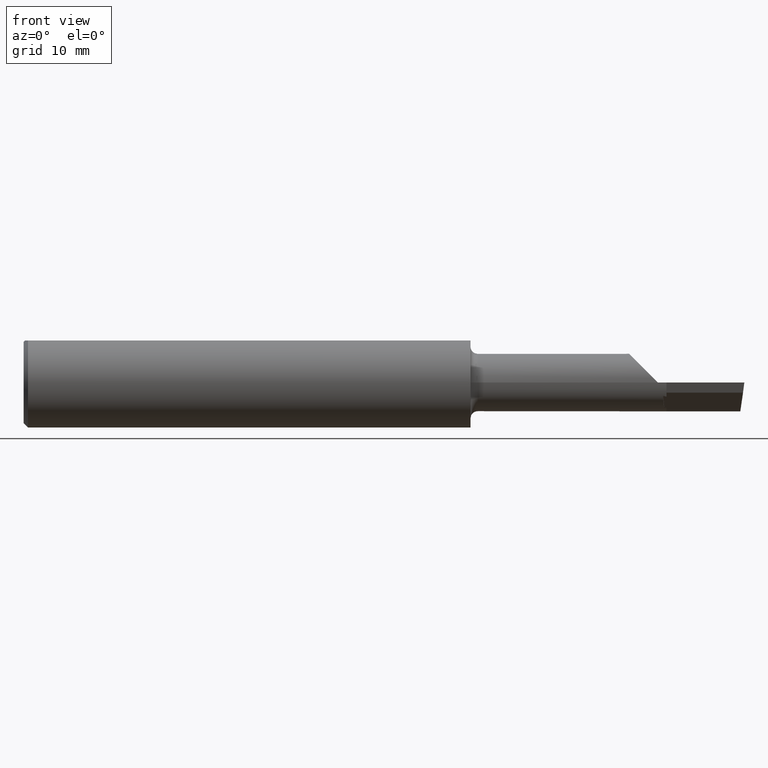
[diagram: clean part render]
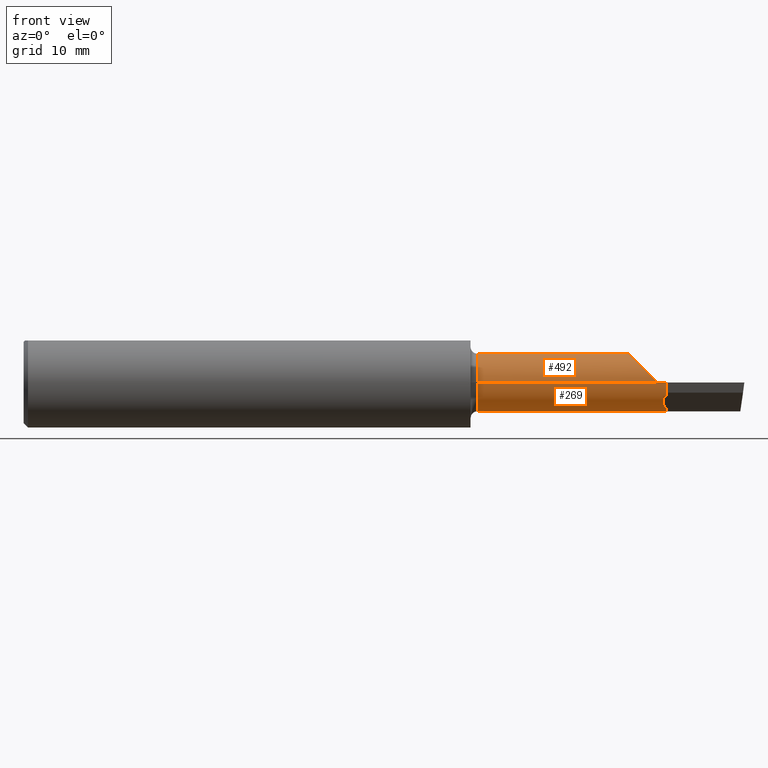
[diagram: same view with one multi-face feature highlighted, each face labeled with its STEP entity id]
A machine part, front view. The highlighted faces form ONE feature: a constant-radius fillet chain: 2 tangent blend faces with common blend radius 2.5375 mm. The faces share edges in the B-rep.
Their STEP definitions:
[1] entity #492 (Cylinder):
#4 = DIRECTION ( 'NONE',  ( -1.000000000000000000, 3.414809992080329023E-18, -0.000000000000000000 ) ) ;
#7 = CYLINDRICAL_SURFACE ( 'NONE', #471, 0.09990000000000004432 ) ;
#27 = CARTESIAN_POINT ( 'NONE',  ( 2.050862765435913726, 0.07006795998724148211, 0.1491372345640848418 ) ) ;
#30 = VECTOR ( 'NONE', #487, 39.37007874015748143 ) ;
#31 = EDGE_CURVE ( 'NONE', #132, #194, #434, .T. ) ;
#40 = EDGE_CURVE ( 'NONE', #280, #399, #61, .T. ) ;
#60 = CARTESIAN_POINT ( 'NONE',  ( 1.574999999999999956, -0.03390000000000009672, 0.000000000000000000 ) ) ;
#61 = LINE ( 'NONE', #320, #112 ) ;
#63 = CARTESIAN_POINT ( 'NONE',  ( 1.574999999999999956, 0.1419939393939388950, 0.06484544066771663617 ) ) ;
#71 = CARTESIAN_POINT ( 'NONE',  ( 2.089191818750234741, -0.03390000000000004121, 0.1108081812497644647 ) ) ;
#88 = ORIENTED_EDGE ( 'NONE', *, *, #458, .F. ) ;
#105 = CIRCLE ( 'NONE', #503, 0.09990000000000008595 ) ;
#112 = VECTOR ( 'NONE', #4, 39.37007874015748143 ) ;
#132 = VERTEX_POINT ( 'NONE', #63 ) ;
#161 = CARTESIAN_POINT ( 'NONE',  ( 1.902500000000000080, 0.1419939393939392558, 0.06484544066771610882 ) ) ;
#177 =( BOUNDED_CURVE ( )  B_SPLINE_CURVE ( 3, ( #548, #27, #71, #292 ),
 .UNSPECIFIED., .F., .T. ) 
 B_SPLINE_CURVE_WITH_KNOTS ( ( 4, 4 ),
 ( 5.418794317430681851, 7.853981633974482790 ),
 .UNSPECIFIED. ) 
 CURVE ( )  GEOMETRIC_REPRESENTATION_ITEM ( )  RATIONAL_B_SPLINE_CURVE ( ( 1.000000000000000000, 0.5639363621110593527, 0.5639363621110593527, 1.000000000000000000 ) ) 
 REPRESENTATION_ITEM ( '' )  );
#194 = VERTEX_POINT ( 'NONE', #656 ) ;
#206 = EDGE_CURVE ( 'NONE', #194, #280, #177, .T. ) ;
#219 = ORIENTED_EDGE ( 'NONE', *, *, #31, .F. ) ;
#230 = ORIENTED_EDGE ( 'NONE', *, *, #206, .F. ) ;
#280 = VERTEX_POINT ( 'NONE', #574 ) ;
#292 = CARTESIAN_POINT ( 'NONE',  ( 2.200000000000000178, -0.03390000000000021468, 9.797174393178826150E-17 ) ) ;
#320 = CARTESIAN_POINT ( 'NONE',  ( -3.411395182088250145E-19, -0.03390000000000004121, 0.000000000000000000 ) ) ;
#387 = DIRECTION ( 'NONE',  ( -1.000000000000000000, 3.414809992080329023E-18, -0.000000000000000000 ) ) ;
#394 = EDGE_LOOP ( 'NONE', ( #564, #230, #219, #88 ) ) ;
#399 = VERTEX_POINT ( 'NONE', #60 ) ;
#430 = CARTESIAN_POINT ( 'NONE',  ( 1.574999999999999956, 0.06599999999999998923, 0.000000000000000000 ) ) ;
#434 = LINE ( 'NONE', #161, #30 ) ;
#458 = EDGE_CURVE ( 'NONE', #399, #132, #105, .T. ) ;
#471 = AXIS2_PLACEMENT_3D ( 'NONE', #651, #387, #609 ) ;
#487 = DIRECTION ( 'NONE',  ( 1.000000000000000000, -3.414809992080329023E-18, 0.000000000000000000 ) ) ;
#491 = DIRECTION ( 'NONE',  ( 0.000000000000000000, -1.000000000000000000, 0.000000000000000000 ) ) ;
#492 = ADVANCED_FACE ( 'NONE', ( #589 ), #7, .T. ) ;
#495 = DIRECTION ( 'NONE',  ( -1.000000000000000000, 3.414809992080329023E-18, -0.000000000000000000 ) ) ;
#503 = AXIS2_PLACEMENT_3D ( 'NONE', #430, #495, #491 ) ;
#548 = CARTESIAN_POINT ( 'NONE',  ( 2.135154559332283597, 0.1419939393939393113, 0.06484544066771606718 ) ) ;
#564 = ORIENTED_EDGE ( 'NONE', *, *, #40, .F. ) ;
#574 = CARTESIAN_POINT ( 'NONE',  ( 2.200000000000000178, -0.03390000000000021468, 9.797174393178826150E-17 ) ) ;
#589 = FACE_OUTER_BOUND ( 'NONE', #394, .T. ) ;
#609 = DIRECTION ( 'NONE',  ( -3.414809992080329023E-18, -1.000000000000000000, 0.000000000000000000 ) ) ;
#651 = CARTESIAN_POINT ( 'NONE',  ( 0.000000000000000000, 0.06600000000000000311, 0.000000000000000000 ) ) ;
#656 = CARTESIAN_POINT ( 'NONE',  ( 2.135154559332283597, 0.1419939393939393113, 0.06484544066771606718 ) ) ;
[2] entity #269 (Cylinder):
#4 = DIRECTION ( 'NONE',  ( -1.000000000000000000, 3.414809992080329023E-18, -0.000000000000000000 ) ) ;
#5 = ORIENTED_EDGE ( 'NONE', *, *, #385, .T. ) ;
#6 = AXIS2_PLACEMENT_3D ( 'NONE', #624, #246, #349 ) ;
#8 = EDGE_CURVE ( 'NONE', #367, #207, #20, .T. ) ;
#15 = CARTESIAN_POINT ( 'NONE',  ( 2.229999999999999982, -0.03390000000000001346, 0.000000000000000000 ) ) ;
#20 =( BOUNDED_CURVE ( )  B_SPLINE_CURVE ( 3, ( #158, #646, #104, #55 ),
 .UNSPECIFIED., .F., .F. ) 
 B_SPLINE_CURVE_WITH_KNOTS ( ( 4, 4 ),
 ( 5.216926016506045372, 5.800715090403769203 ),
 .UNSPECIFIED. ) 
 CURVE ( )  GEOMETRIC_REPRESENTATION_ITEM ( )  RATIONAL_B_SPLINE_CURVE ( ( 1.000000000000000000, 0.9718002727220685921, 0.9718002727220685921, 1.000000000000000000 ) ) 
 REPRESENTATION_ITEM ( '' )  );
#33 = ORIENTED_EDGE ( 'NONE', *, *, #412, .T. ) ;
#40 = EDGE_CURVE ( 'NONE', #280, #399, #61, .T. ) ;
#55 = CARTESIAN_POINT ( 'NONE',  ( 2.218438857550834253, -0.02249656715429228931, -0.04635048653364759463 ) ) ;
#60 = CARTESIAN_POINT ( 'NONE',  ( 1.574999999999999956, -0.03390000000000009672, 0.000000000000000000 ) ) ;
#61 = LINE ( 'NONE', #320, #112 ) ;
#68 = AXIS2_PLACEMENT_3D ( 'NONE', #523, #83, #567 ) ;
#75 = ORIENTED_EDGE ( 'NONE', *, *, #82, .T. ) ;
#82 = EDGE_CURVE ( 'NONE', #207, #384, #228, .T. ) ;
#83 = DIRECTION ( 'NONE',  ( -1.000000000000000000, 3.414809992080329023E-18, -0.000000000000000000 ) ) ;
#91 = ORIENTED_EDGE ( 'NONE', *, *, #636, .T. ) ;
#99 = CARTESIAN_POINT ( 'NONE',  ( 2.486592206520481518, 0.1419939393939392558, -0.06484544066771610882 ) ) ;
#104 = CARTESIAN_POINT ( 'NONE',  ( 2.219319914771515023, -0.01334643806718939160, -0.06382074572152920955 ) ) ;
#107 = VERTEX_POINT ( 'NONE', #353 ) ;
#112 = VECTOR ( 'NONE', #4, 39.37007874015748143 ) ;
#115 = LINE ( 'NONE', #226, #603 ) ;
#116 = VERTEX_POINT ( 'NONE', #15 ) ;
#118 = CARTESIAN_POINT ( 'NONE',  ( 1.902500000000000080, 0.1419939393939392558, -0.06484544066771610882 ) ) ;
#120 = ORIENTED_EDGE ( 'NONE', *, *, #188, .F. ) ;
#122 = DIRECTION ( 'NONE',  ( -1.000000000000000000, 3.414809992080329023E-18, -0.000000000000000000 ) ) ;
#124 = CIRCLE ( 'NONE', #296, 0.09990000000000008595 ) ;
#131 = CARTESIAN_POINT ( 'NONE',  ( 1.574999999999999956, 0.06599999999999998923, 0.000000000000000000 ) ) ;
#137 = DIRECTION ( 'NONE',  ( -1.000000000000000000, 3.414809992080329023E-18, -0.000000000000000000 ) ) ;
#140 = CARTESIAN_POINT ( 'NONE',  ( 2.222310128493429904, 0.01770811878936139061, -0.08745229676307864075 ) ) ;
#158 = CARTESIAN_POINT ( 'NONE',  ( 2.222310128493429904, 0.01770811878936139061, -0.08745229676307864075 ) ) ;
#166 = CARTESIAN_POINT ( 'NONE',  ( 1.574999999999999956, 0.1419939393939390337, -0.06484544066771648352 ) ) ;
#170 = EDGE_CURVE ( 'NONE', #280, #116, #115, .T. ) ;
#176 = CARTESIAN_POINT ( 'NONE',  ( 2.229999999999999982, -0.02114125901369683092, -0.04885090559557524886 ) ) ;
#188 = EDGE_CURVE ( 'NONE', #518, #399, #124, .T. ) ;
#190 = FACE_OUTER_BOUND ( 'NONE', #411, .T. ) ;
#207 = VERTEX_POINT ( 'NONE', #673 ) ;
#211 = CARTESIAN_POINT ( 'NONE',  ( 2.484432346890067311, 0.1227037540429562340, -0.08745207517224946880 ) ) ;
#212 = CARTESIAN_POINT ( 'NONE',  ( 2.218438857550834253, -0.02249656715429228931, -0.04635048653364759463 ) ) ;
#226 = CARTESIAN_POINT ( 'NONE',  ( -3.411395182087937181E-19, -0.03390000000000002039, 3.155924005931204823E-16 ) ) ;
#228 =( BOUNDED_CURVE ( )  B_SPLINE_CURVE ( 3, ( #212, #431, #389, #176 ),
 .UNSPECIFIED., .F., .F. ) 
 B_SPLINE_CURVE_WITH_KNOTS ( ( 4, 4 ),
 ( 2.845084404038395576, 2.873554924506877661 ),
 .UNSPECIFIED. ) 
 CURVE ( )  GEOMETRIC_REPRESENTATION_ITEM ( )  RATIONAL_B_SPLINE_CURVE ( ( 1.000000000000000000, 0.9999324535960144589, 0.9999324535960144589, 1.000000000000000000 ) ) 
 REPRESENTATION_ITEM ( '' )  );
#231 = CARTESIAN_POINT ( 'NONE',  ( 2.222310128493429904, 0.01770811878936139061, -0.08745229676307864075 ) ) ;
#242 = CIRCLE ( 'NONE', #628, 0.09990000000000000269 ) ;
#246 = DIRECTION ( 'NONE',  ( -1.000000000000000000, 3.414809992080329023E-18, -0.000000000000000000 ) ) ;
#255 = CARTESIAN_POINT ( 'NONE',  ( 2.229999999999999982, -0.02114125901369683092, -0.04885090559557524886 ) ) ;
#257 = CARTESIAN_POINT ( 'NONE',  ( 2.224959910392297235, 0.01714715917505337320, -0.08714253022679750715 ) ) ;
#266 = DIRECTION ( 'NONE',  ( 0.000000000000000000, -1.000000000000000000, 0.000000000000000000 ) ) ;
#268 = ORIENTED_EDGE ( 'NONE', *, *, #40, .T. ) ;
#269 = ADVANCED_FACE ( 'NONE', ( #190 ), #529, .T. ) ;
#280 = VERTEX_POINT ( 'NONE', #574 ) ;
#296 = AXIS2_PLACEMENT_3D ( 'NONE', #131, #122, #345 ) ;
#304 = CARTESIAN_POINT ( 'NONE',  ( 2.486592206520481518, 0.1419939393939392558, -0.06484544066771610882 ) ) ;
#313 = CARTESIAN_POINT ( 'NONE',  ( 2.227523279994489513, 0.01658920591323143415, -0.08682738081222331206 ) ) ;
#316 = CARTESIAN_POINT ( 'NONE',  ( 2.484477565782318376, 0.06599999999999998923, -0.09990000000000000269 ) ) ;
#320 = CARTESIAN_POINT ( 'NONE',  ( -3.411395182088250145E-19, -0.03390000000000004121, 0.000000000000000000 ) ) ;
#327 =( BOUNDED_CURVE ( )  B_SPLINE_CURVE ( 3, ( #99, #211, #341, #316 ),
 .UNSPECIFIED., .F., .T. ) 
 B_SPLINE_CURVE_WITH_KNOTS ( ( 4, 4 ),
 ( 5.641308543522681518, 6.505699533271584123 ),
 .UNSPECIFIED. ) 
 CURVE ( )  GEOMETRIC_REPRESENTATION_ITEM ( )  RATIONAL_B_SPLINE_CURVE ( ( 1.000000000000000000, 0.9386988813357775019, 0.9386988813357775019, 1.000000000000000000 ) ) 
 REPRESENTATION_ITEM ( '' )  );
#341 = CARTESIAN_POINT ( 'NONE',  ( 2.483681434898939333, 0.09571819601686547274, -0.09990000000000004432 ) ) ;
#345 = DIRECTION ( 'NONE',  ( 0.000000000000000000, -1.000000000000000000, 0.000000000000000000 ) ) ;
#346 = VECTOR ( 'NONE', #137, 39.37007874015748143 ) ;
#349 = DIRECTION ( 'NONE',  ( 0.000000000000000000, -1.000000000000000000, 0.000000000000000000 ) ) ;
#351 = VERTEX_POINT ( 'NONE', #410 ) ;
#353 = CARTESIAN_POINT ( 'NONE',  ( 2.229999999999999982, 0.01603431065556216312, -0.08650687769382923997 ) ) ;
#367 = VERTEX_POINT ( 'NONE', #140 ) ;
#383 = VERTEX_POINT ( 'NONE', #304 ) ;
#384 = VERTEX_POINT ( 'NONE', #255 ) ;
#385 = EDGE_CURVE ( 'NONE', #107, #367, #689, .T. ) ;
#389 = CARTESIAN_POINT ( 'NONE',  ( 2.226335579060370495, -0.02160487824124662781, -0.04802389199779039802 ) ) ;
#392 = LINE ( 'NONE', #118, #346 ) ;
#396 = EDGE_CURVE ( 'NONE', #501, #107, #242, .T. ) ;
#399 = VERTEX_POINT ( 'NONE', #60 ) ;
#410 = CARTESIAN_POINT ( 'NONE',  ( 2.484477565782318376, 0.06599999999999998923, -0.09990000000000000269 ) ) ;
#411 = EDGE_LOOP ( 'NONE', ( #542, #268, #120, #424, #33, #611, #468, #5, #556, #75, #91 ) ) ;
#412 = EDGE_CURVE ( 'NONE', #383, #351, #327, .T. ) ;
#424 = ORIENTED_EDGE ( 'NONE', *, *, #531, .F. ) ;
#431 = CARTESIAN_POINT ( 'NONE',  ( 2.222481604588531834, -0.02205667813890349604, -0.04719036267523946115 ) ) ;
#450 = DIRECTION ( 'NONE',  ( -1.000000000000000000, 3.414809992080329023E-18, -0.000000000000000000 ) ) ;
#466 = CARTESIAN_POINT ( 'NONE',  ( 2.500000000000000000, 0.06599999999999998923, -0.09990000000000000269 ) ) ;
#468 = ORIENTED_EDGE ( 'NONE', *, *, #396, .T. ) ;
#470 = CARTESIAN_POINT ( 'NONE',  ( 2.229999999999999982, 0.06599999999999998923, 0.000000000000000000 ) ) ;
#474 = CARTESIAN_POINT ( 'NONE',  ( 2.229999999999999982, 0.01603431065556216312, -0.08650687769382923997 ) ) ;
#501 = VERTEX_POINT ( 'NONE', #601 ) ;
#518 = VERTEX_POINT ( 'NONE', #166 ) ;
#523 = CARTESIAN_POINT ( 'NONE',  ( 0.000000000000000000, 0.06600000000000000311, 0.000000000000000000 ) ) ;
#529 = CYLINDRICAL_SURFACE ( 'NONE', #68, 0.09990000000000004432 ) ;
#531 = EDGE_CURVE ( 'NONE', #383, #518, #392, .T. ) ;
#542 = ORIENTED_EDGE ( 'NONE', *, *, #170, .F. ) ;
#551 = DIRECTION ( 'NONE',  ( 1.000000000000000000, -3.414809992080329023E-18, 0.000000000000000000 ) ) ;
#556 = ORIENTED_EDGE ( 'NONE', *, *, #8, .T. ) ;
#558 = DIRECTION ( 'NONE',  ( -1.000000000000000000, -0.000000000000000000, -0.000000000000000000 ) ) ;
#567 = DIRECTION ( 'NONE',  ( -3.414809992080329023E-18, -1.000000000000000000, 0.000000000000000000 ) ) ;
#574 = CARTESIAN_POINT ( 'NONE',  ( 2.200000000000000178, -0.03390000000000021468, 9.797174393178826150E-17 ) ) ;
#595 = CIRCLE ( 'NONE', #6, 0.09990000000000000269 ) ;
#601 = CARTESIAN_POINT ( 'NONE',  ( 2.229999999999999982, 0.06599999999999998923, -0.09990000000000000269 ) ) ;
#603 = VECTOR ( 'NONE', #551, 39.37007874015748143 ) ;
#611 = ORIENTED_EDGE ( 'NONE', *, *, #653, .T. ) ;
#617 = VECTOR ( 'NONE', #558, 39.37007874015748143 ) ;
#621 = LINE ( 'NONE', #466, #617 ) ;
#624 = CARTESIAN_POINT ( 'NONE',  ( 2.229999999999999982, 0.06599999999999998923, 0.000000000000000000 ) ) ;
#628 = AXIS2_PLACEMENT_3D ( 'NONE', #470, #450, #266 ) ;
#636 = EDGE_CURVE ( 'NONE', #384, #116, #595, .T. ) ;
#646 = CARTESIAN_POINT ( 'NONE',  ( 2.220647783968257016, 0.0004440108114462848932, -0.07791891362122960185 ) ) ;
#653 = EDGE_CURVE ( 'NONE', #351, #501, #621, .T. ) ;
#673 = CARTESIAN_POINT ( 'NONE',  ( 2.218438857550834253, -0.02249656715429228931, -0.04635048653364759463 ) ) ;
#689 =( BOUNDED_CURVE ( )  B_SPLINE_CURVE ( 3, ( #474, #313, #257, #231 ),
 .UNSPECIFIED., .F., .T. ) 
 B_SPLINE_CURVE_WITH_KNOTS ( ( 4, 4 ),
 ( 3.409630382672708127, 3.428873477936118963 ),
 .UNSPECIFIED. ) 
 CURVE ( )  GEOMETRIC_REPRESENTATION_ITEM ( )  RATIONAL_B_SPLINE_CURVE ( ( 1.000000000000000000, 0.9999691421784444589, 0.9999691421784444589, 1.000000000000000000 ) ) 
 REPRESENTATION_ITEM ( '' )  );